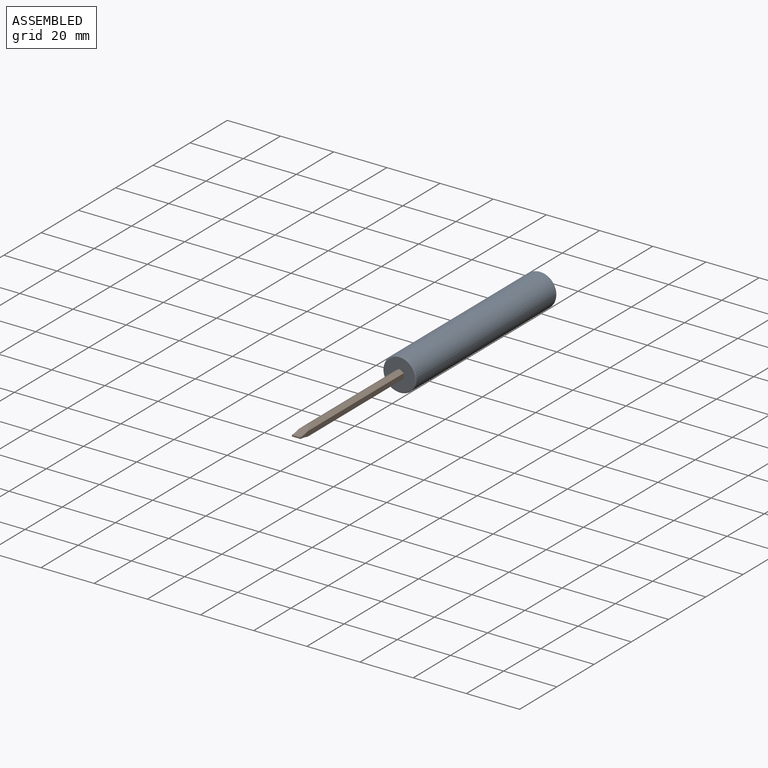
[diagram: assembled view]
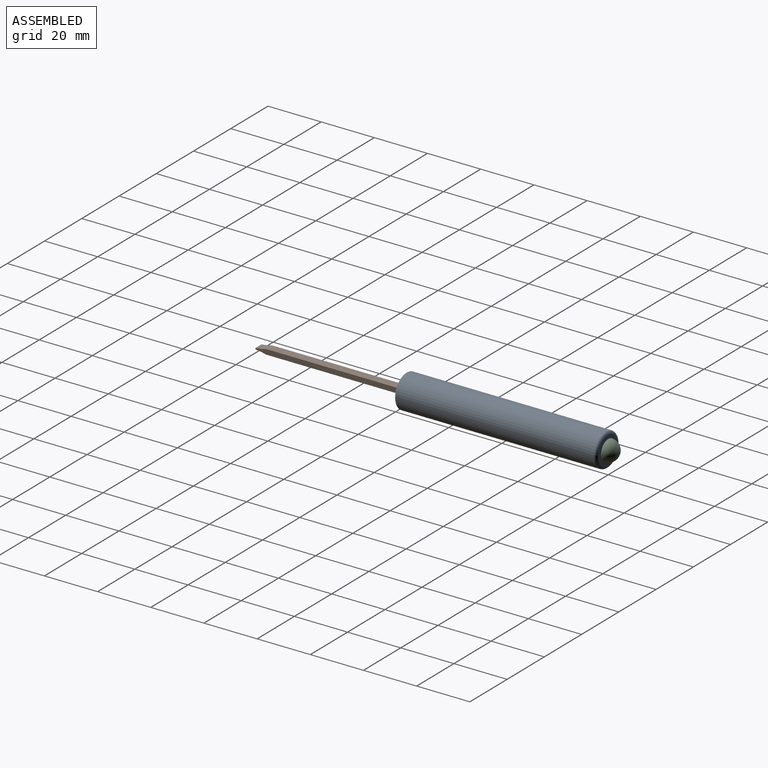
[diagram: assembled view, second angle]
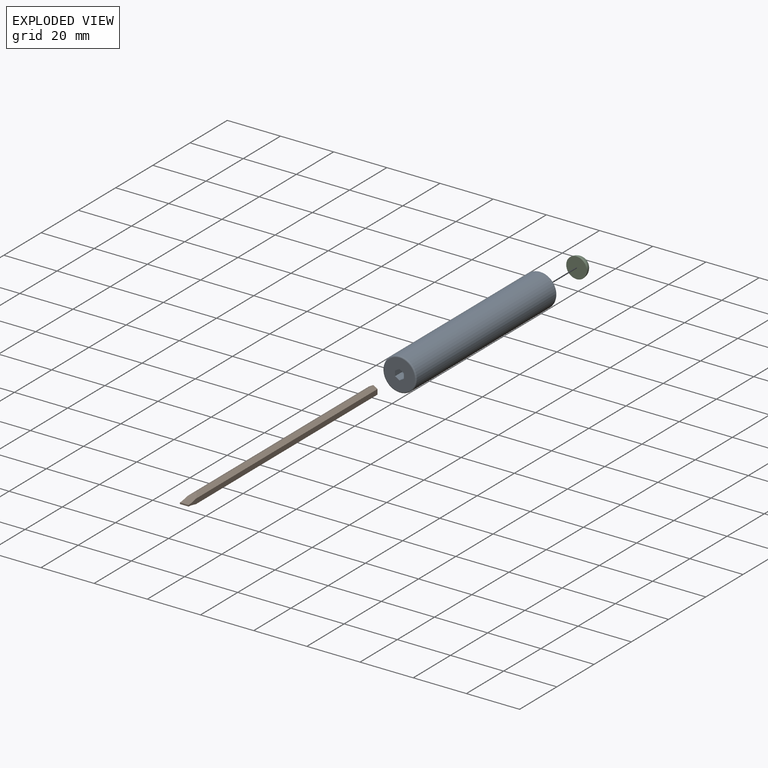
[diagram: exploded view]
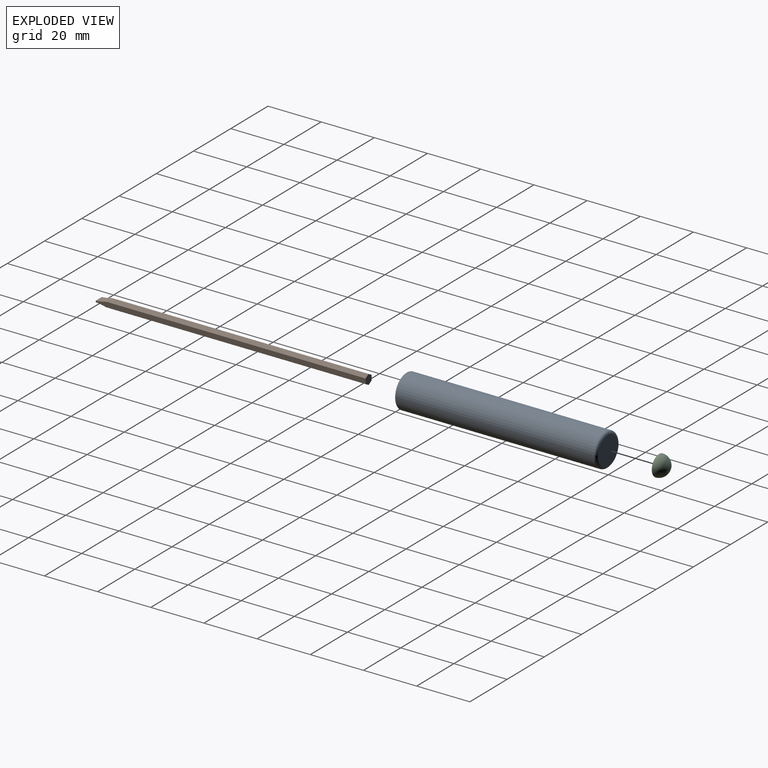
[diagram: exploded view, second angle]
ASSEMBLY  parts=3 mates=2
PART A: 12 faces, bbox 13.5x76x13.5 mm
  f0: plane 11.5x11.5mm, normal (0,-1,0), area 94.1mm2, adj f3,f4,f5,f6,f7,f8,f11
  f1: cylinder r=6.25mm len=74.5mm, axis (0,1,0), area 2925.6mm2, adj f10,f11
  f2: plane 10.5x10.5mm, normal (0,1,0), area 86.6mm2, adj f10
  f3: plane 46x1.68mm, normal (0.5,0,0.87), area 89mm2, adj f0,f4,f8,f9
  f4: plane 46x1.68mm, normal (-0.5,0,0.87), area 89mm2, adj f0,f3,f5,f9
  f5: plane 46x1.93mm, normal (-1,0,0), area 89mm2, adj f0,f4,f6,f9
  f6: plane 46x1.68mm, normal (-0.5,0,-0.87), area 89mm2, adj f0,f5,f7,f9
  f7: plane 46x1.68mm, normal (0.5,0,-0.87), area 89mm2, adj f0,f6,f8,f9
  f8: plane 46x1.93mm, normal (1,0,0), area 89mm2, adj f0,f3,f7,f9
  f9: plane 3.87x3.35mm, normal (0,-1,0), area 9.7mm2, adj f3,f4,f5,f6,f7,f8
  f10: torus R=5.25mm, axis (0,-1,0), area 58.1mm2, adj f1,f2
  f11: torus R=5.75mm, axis (0,-1,0), area 29.9mm2, adj f0,f1
PART B: 10 faces, bbox 3.3x101.5x3.8 mm
  f0: plane 101.5x2.01mm, normal (1,0,0), area 187.2mm2, adj f1,f4,f6,f7,f8,f9
  f1: plane 97.59x1.63mm, normal (0.5,0,0.87), area 180.4mm2, adj f0,f2,f7,f9
  f2: plane 97.59x1.63mm, normal (-0.5,0,0.87), area 180.4mm2, adj f1,f3,f7,f9
  f3: plane 101.5x2.01mm, normal (-1,0,0), area 187.2mm2, adj f2,f4,f5,f7,f8,f9
  f4: plane 3.25x0.5mm, normal (0,-1,0), area 1.6mm2, adj f0,f3,f8,f9
  f5: plane 97.59x1.63mm, normal (-0.5,0,-0.87), area 180.4mm2, adj f3,f6,f7,f8
  f6: plane 97.59x1.63mm, normal (0.5,0,-0.87), area 180.4mm2, adj f0,f5,f7,f8
  f7: plane 3.75x3.25mm, normal (0,1,0), area 9.1mm2, adj f0,f1,f2,f3,f5,f6
  f8: extruded ~6.5x3.25mm, area 17.9mm2, adj f0,f3,f4,f5,f6
  f9: extruded ~6.5x3.25mm, area 17.9mm2, adj f0,f1,f2,f3,f4
PART C: 2 faces, bbox 7.8x3.9x7.8 mm
  f0: sphere r=3.88mm, area 94.3mm2, adj f1
  f1: plane 7.75x7.75mm, normal (0,-1,0), area 47.2mm2, adj f0
PLACE A at identity fixed
PLACE B t=(0,71,0)mm
PLACE C at identity
MATE fastened A.f1 <-> C.f1  axis (0,1,0) through (0,0,0)mm
MATE slider A.f1 <-> B.f7  axis (0,-1,0) through (0,-76,0)mm
